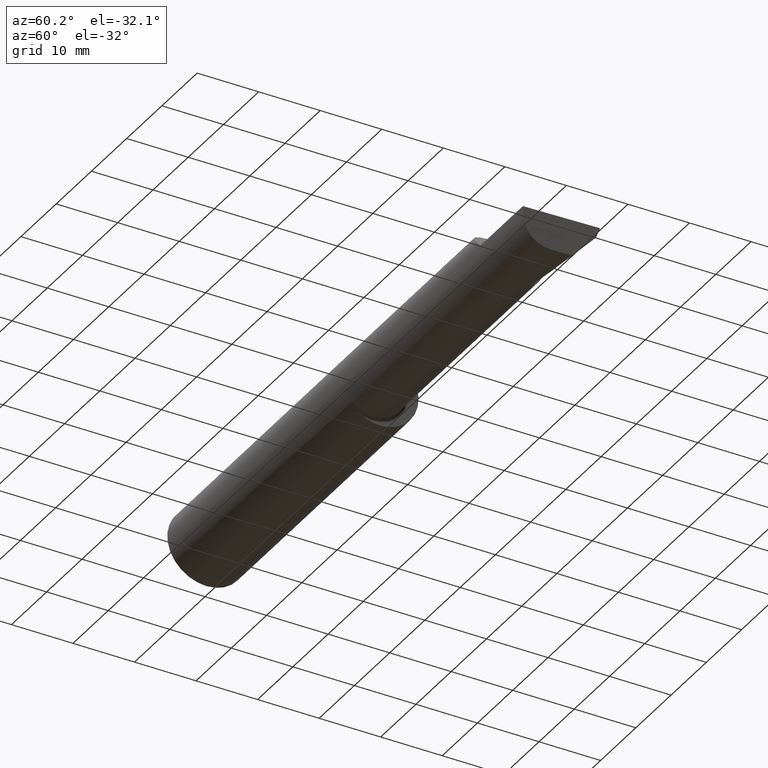
[diagram: clean part render]
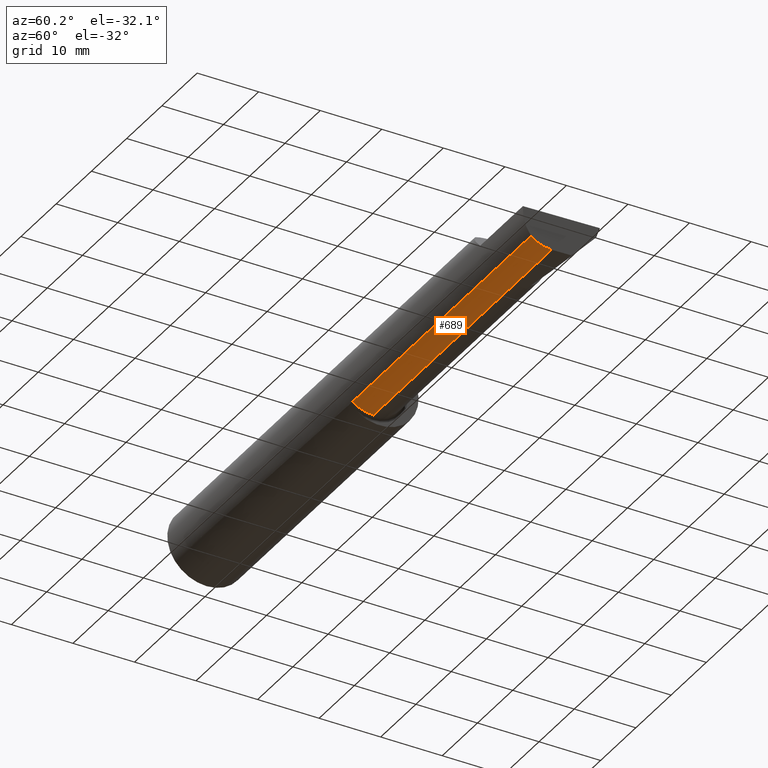
[diagram: same view with one face highlighted and labeled with its STEP entity id]
A machine part, auxiliary view. The second image highlights one B-rep face of the part: STEP entity #689.
In plain terms, the highlighted cylindrical surface (partial cylindrical patch) has radius 5.414 mm, axis along (-1, -0, -0).
Its self-contained STEP definition (entity closure, byte-faithful):
#12 = LINE ( 'NONE', #416, #789 ) ;
#16 = ORIENTED_EDGE ( 'NONE', *, *, #374, .F. ) ;
#49 = CARTESIAN_POINT ( 'NONE',  ( 4.000000000000000000, -0.05299999999999998462, -0.2131499999999999229 ) ) ;
#76 = CARTESIAN_POINT ( 'NONE',  ( 0.000000000000000000, -0.05299999999999998462, 0.000000000000000000 ) ) ;
#79 = CARTESIAN_POINT ( 'NONE',  ( 1.975000000000000089, -0.05299999999999998462, 0.000000000000000000 ) ) ;
#99 = CARTESIAN_POINT ( 'NONE',  ( 3.966195468375008470, -0.05299999999999998462, -0.2131499999999999229 ) ) ;
#123 = CARTESIAN_POINT ( 'NONE',  ( 3.966195468375008470, -0.05299999999999998462, -0.2131499999999999229 ) ) ;
#142 = DIRECTION ( 'NONE',  ( -1.000000000000000000, -0.000000000000000000, -0.000000000000000000 ) ) ;
#166 = VERTEX_POINT ( 'NONE', #663 ) ;
#178 = LINE ( 'NONE', #49, #262 ) ;
#195 = CARTESIAN_POINT ( 'NONE',  ( 1.975000000000000089, -0.1868028301886797693, -0.1659208399614082174 ) ) ;
#202 = VECTOR ( 'NONE', #280, 39.37007874015748143 ) ;
#213 = LINE ( 'NONE', #358, #202 ) ;
#219 = VERTEX_POINT ( 'NONE', #123 ) ;
#237 = CARTESIAN_POINT ( 'NONE',  ( 3.965703997523711166, -0.1485302233682060380, -0.1967848538638756750 ) ) ;
#262 = VECTOR ( 'NONE', #639, 39.37007874015748143 ) ;
#280 = DIRECTION ( 'NONE',  ( -1.000000000000000000, -0.000000000000000000, -0.000000000000000000 ) ) ;
#291 = VERTEX_POINT ( 'NONE', #195 ) ;
#305 =( BOUNDED_CURVE ( )  B_SPLINE_CURVE ( 3, ( #519, #237, #432, #99 ),
 .UNSPECIFIED., .F., .F. ) 
 B_SPLINE_CURVE_WITH_KNOTS ( ( 4, 4 ),
 ( 5.814587959757459679, 6.493234751459699083 ),
 .UNSPECIFIED. ) 
 CURVE ( )  GEOMETRIC_REPRESENTATION_ITEM ( )  RATIONAL_B_SPLINE_CURVE ( ( 1.000000000000000000, 0.9619867256453022986, 0.9619867256453022986, 1.000000000000000000 ) ) 
 REPRESENTATION_ITEM ( '' )  );
#344 = ORIENTED_EDGE ( 'NONE', *, *, #592, .T. ) ;
#347 = DIRECTION ( 'NONE',  ( -1.000000000000000000, -0.000000000000000000, -0.000000000000000000 ) ) ;
#352 = ORIENTED_EDGE ( 'NONE', *, *, #682, .F. ) ;
#358 = CARTESIAN_POINT ( 'NONE',  ( 2.760000000000000231, -0.1868028301886794917, -0.1659208399614086338 ) ) ;
#361 = ORIENTED_EDGE ( 'NONE', *, *, #390, .F. ) ;
#374 = EDGE_CURVE ( 'NONE', #555, #219, #305, .T. ) ;
#390 = EDGE_CURVE ( 'NONE', #219, #166, #178, .T. ) ;
#395 = CARTESIAN_POINT ( 'NONE',  ( 1.975000000000000089, -0.05299999999999996381, -0.2131499999999997841 ) ) ;
#406 = CARTESIAN_POINT ( 'NONE',  ( 3.968492717492762445, -0.1868028301886794917, -0.1659208399614086338 ) ) ;
#415 = CYLINDRICAL_SURFACE ( 'NONE', #612, 0.2131499999999999506 ) ;
#416 = CARTESIAN_POINT ( 'NONE',  ( 0.000000000000000000, -0.05299999999999996381, -0.2131499999999999506 ) ) ;
#432 = CARTESIAN_POINT ( 'NONE',  ( 3.964907988924523785, -0.1021668565906570653, -0.2131499999999999784 ) ) ;
#474 = CIRCLE ( 'NONE', #653, 0.2131499999999997841 ) ;
#489 = VERTEX_POINT ( 'NONE', #395 ) ;
#519 = CARTESIAN_POINT ( 'NONE',  ( 3.968492717492762445, -0.1868028301886794917, -0.1659208399614086338 ) ) ;
#555 = VERTEX_POINT ( 'NONE', #406 ) ;
#592 = EDGE_CURVE ( 'NONE', #555, #291, #213, .T. ) ;
#612 = AXIS2_PLACEMENT_3D ( 'NONE', #76, #618, #692 ) ;
#618 = DIRECTION ( 'NONE',  ( -1.000000000000000000, -0.000000000000000000, -0.000000000000000000 ) ) ;
#639 = DIRECTION ( 'NONE',  ( -1.000000000000000000, 5.691349986800549142E-18, -0.000000000000000000 ) ) ;
#644 = ORIENTED_EDGE ( 'NONE', *, *, #650, .F. ) ;
#650 = EDGE_CURVE ( 'NONE', #166, #489, #12, .T. ) ;
#653 = AXIS2_PLACEMENT_3D ( 'NONE', #79, #347, #749 ) ;
#663 = CARTESIAN_POINT ( 'NONE',  ( 3.544999999999999929, -0.05299999999999998462, -0.2131499999999999229 ) ) ;
#679 = FACE_OUTER_BOUND ( 'NONE', #683, .T. ) ;
#682 = EDGE_CURVE ( 'NONE', #489, #291, #474, .T. ) ;
#683 = EDGE_LOOP ( 'NONE', ( #644, #361, #16, #344, #352 ) ) ;
#689 = ADVANCED_FACE ( 'NONE', ( #679 ), #415, .T. ) ;
#692 = DIRECTION ( 'NONE',  ( 0.000000000000000000, 0.000000000000000000, 1.000000000000000000 ) ) ;
#749 = DIRECTION ( 'NONE',  ( 0.000000000000000000, 0.000000000000000000, 1.000000000000000000 ) ) ;
#789 = VECTOR ( 'NONE', #142, 39.37007874015748143 ) ;